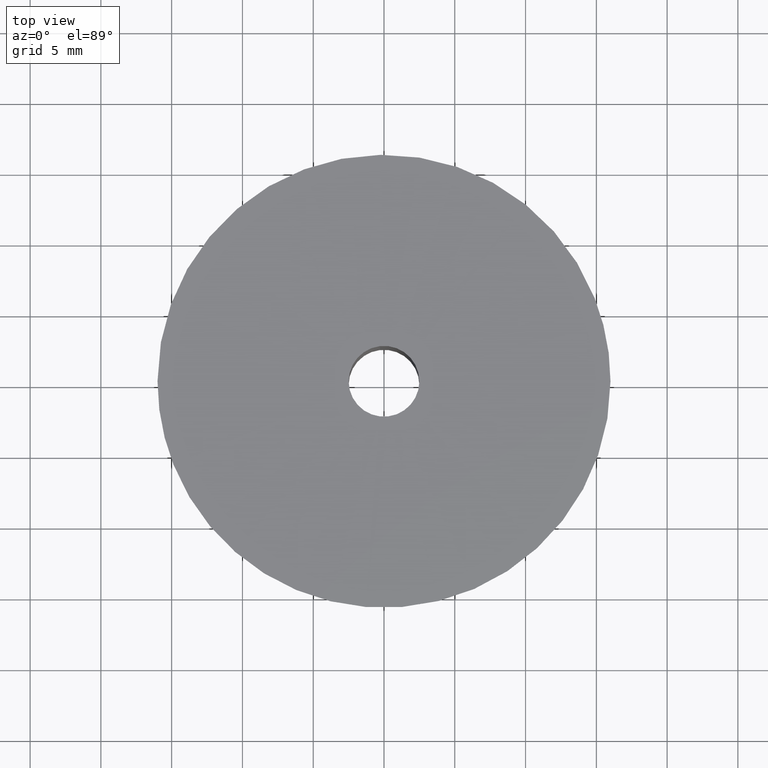
[diagram: clean part render]
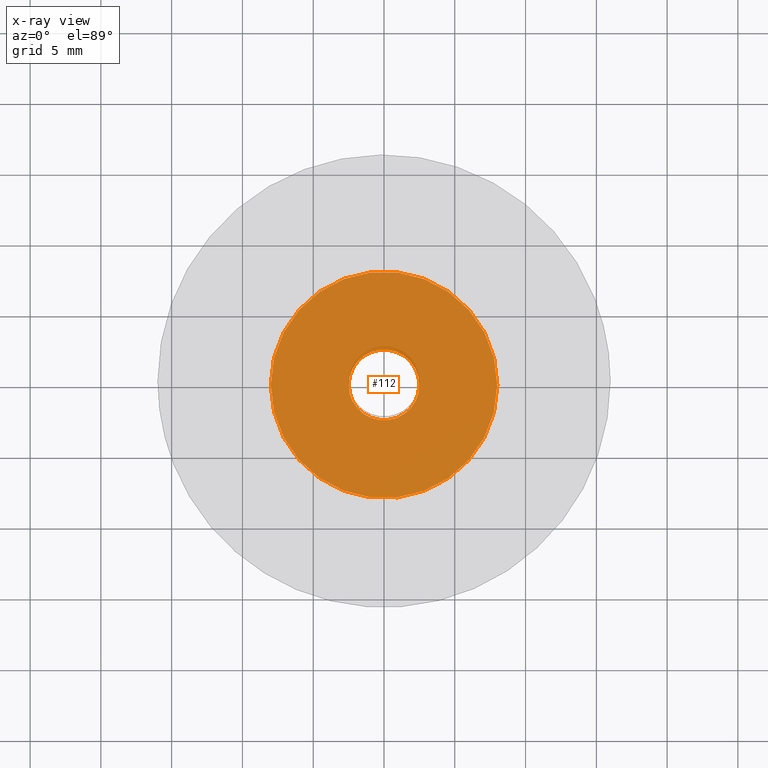
[diagram: x-ray — body ghosted, one internal face saturated and labeled with its STEP entity id]
A machine part, top view, then the same camera in x-ray: the body is ghosted and one INTERNAL B-rep face — a face not visible from any outside direction — is saturated and labeled: STEP entity #112.
In plain terms, the highlighted planar face has unit normal (0, 0, -1).
Its self-contained STEP definition (entity closure, byte-faithful):
#112=ADVANCED_FACE('',(#133,#134),#132,.F.);
#132=PLANE('',#341);
#133=FACE_OUTER_BOUND('',#342,.T.);
#134=FACE_BOUND('',#343,.T.);
#338=CARTESIAN_POINT('',(1.84000000000E+001,-1.66276877527E+001,9.80000000000E+000));
#339=DIRECTION('',(0.00000000000E+000,0.00000000000E+000,-1.00000000000E+000));
#340=DIRECTION('',(-1.00000000000E+000,0.00000000000E+000,0.00000000000E+000));
#341=AXIS2_PLACEMENT_3D('',#338,#339,#340);
#342=EDGE_LOOP('',(#498,#499,#500));
#343=EDGE_LOOP('',(#501,#502,#503));
#498=ORIENTED_EDGE('',*,*,#618,.F.);
#499=ORIENTED_EDGE('',*,*,#619,.F.);
#500=ORIENTED_EDGE('',*,*,#620,.F.);
#501=ORIENTED_EDGE('',*,*,#621,.T.);
#502=ORIENTED_EDGE('',*,*,#622,.T.);
#503=ORIENTED_EDGE('',*,*,#623,.T.);
#618=EDGE_CURVE('',#678,#679,#680,.T.);
#619=EDGE_CURVE('',#686,#678,#687,.T.);
#620=EDGE_CURVE('',#679,#686,#693,.T.);
#621=EDGE_CURVE('',#699,#700,#701,.T.);
#622=EDGE_CURVE('',#700,#707,#708,.T.);
#623=EDGE_CURVE('',#707,#699,#714,.T.);
#678=VERTEX_POINT('',#1084);
#679=VERTEX_POINT('',#1085);
#680=CIRCLE('',#1089,8.00000000000E+000);
#686=VERTEX_POINT('',#1090);
#687=CIRCLE('',#1094,8.00000000000E+000);
#693=CIRCLE('',#1098,8.00000000000E+000);
#699=VERTEX_POINT('',#1099);
#700=VERTEX_POINT('',#1100);
#701=CIRCLE('',#1104,2.50000000003E+000);
#707=VERTEX_POINT('',#1105);
#708=CIRCLE('',#1109,2.50000000003E+000);
#714=CIRCLE('',#1113,2.50000000003E+000);
#1084=CARTESIAN_POINT('',(9.44273846965E-001,-7.94407621451E+000,9.80000000000E+000));
#1085=CARTESIAN_POINT('',(-8.00000000000E+000,-3.10862446895E-015,9.80000000000E+000));
#1086=CARTESIAN_POINT('',(1.03428376974E-012,4.72955008490E-013,9.80000000000E+000));
#1087=DIRECTION('',(9.35470107226E-016,1.11194410202E-016,-1.00000000000E+000));
#1088=DIRECTION('',(-1.00000000000E+000,-5.91193760613E-014,-9.35470107226E-016));
#1089=AXIS2_PLACEMENT_3D('',#1086,#1087,#1088);
#1090=CARTESIAN_POINT('',(-9.45646880192E-001,7.94391288837E+000,9.80000000000E+000));
#1091=CARTESIAN_POINT('',(1.03428376974E-012,4.72955008490E-013,9.80000000000E+000));
#1092=DIRECTION('',(9.35470107226E-016,1.11194410202E-016,-1.00000000000E+000));
#1093=DIRECTION('',(-1.00000000000E+000,-5.91193760613E-014,-9.35470107226E-016));
#1094=AXIS2_PLACEMENT_3D('',#1091,#1092,#1093);
#1095=CARTESIAN_POINT('',(1.03428376974E-012,4.72955008490E-013,9.80000000000E+000));
#1096=DIRECTION('',(9.35470107226E-016,1.11194410202E-016,-1.00000000000E+000));
#1097=DIRECTION('',(-1.00000000000E+000,-5.91193760613E-014,-9.35470107226E-016));
#1098=AXIS2_PLACEMENT_3D('',#1095,#1096,#1097);
#1099=CARTESIAN_POINT('',(-2.50000000006E+000,-3.06152297188E-016,9.80000000000E+000));
#1100=CARTESIAN_POINT('',(-2.95514653010E-001,2.48247277733E+000,9.80000000000E+000));
#1101=CARTESIAN_POINT('',(-3.06878966683E-011,2.88680190863E-011,9.80000000000E+000));
#1102=DIRECTION('',(1.42108547150E-015,-2.51214793389E-016,-1.00000000000E+000));
#1103=DIRECTION('',(-1.00000000000E+000,-1.15472076347E-011,-1.42108547150E-015));
#1104=AXIS2_PLACEMENT_3D('',#1101,#1102,#1103);
#1105=CARTESIAN_POINT('',(2.95084678797E-001,-2.48252392382E+000,9.80000000000E+000));
#1106=CARTESIAN_POINT('',(-3.06878966683E-011,2.88680190863E-011,9.80000000000E+000));
#1107=DIRECTION('',(1.42108547150E-015,-2.51214793389E-016,-1.00000000000E+000));
#1108=DIRECTION('',(-1.00000000000E+000,-1.15472076347E-011,-1.42108547150E-015));
#1109=AXIS2_PLACEMENT_3D('',#1106,#1107,#1108);
#1110=CARTESIAN_POINT('',(-3.06878966683E-011,2.88680190863E-011,9.80000000000E+000));
#1111=DIRECTION('',(1.42108547150E-015,-2.51214793389E-016,-1.00000000000E+000));
#1112=DIRECTION('',(-1.00000000000E+000,-1.15472076347E-011,-1.42108547150E-015));
#1113=AXIS2_PLACEMENT_3D('',#1110,#1111,#1112);